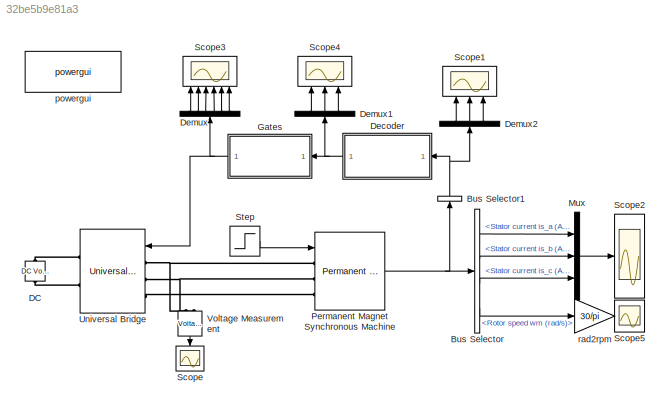
MODEL slx_32be5b9e81a3
KIND model
BLOCK [BusSelector] Bus Selector
  OutputSignals = Stator current is_a (A),Stator current is_b (A),Stator current is_c (A),Rotor speed wm (rad/s)
  Ports = [1, 4]
BLOCK [BusSelector] Bus Selector1
  OutputAsBus = on
  OutputSignals = Hall effect signal h_a,Hall effect signal h_b,Hall effect signal h_c
  Ports = [1, 1]
BLOCK [Reference] DC  REF=powerlib/Electrical
Sources/DC Voltage Source
  Amplitude = 50
  Measurements = None
  Ports = [0, 0, 0, 0, 0, 1, 1]
  SourceBlock = powerlib/Electrical\nSources/DC Voltage Source
  SourceType = DC Voltage Source
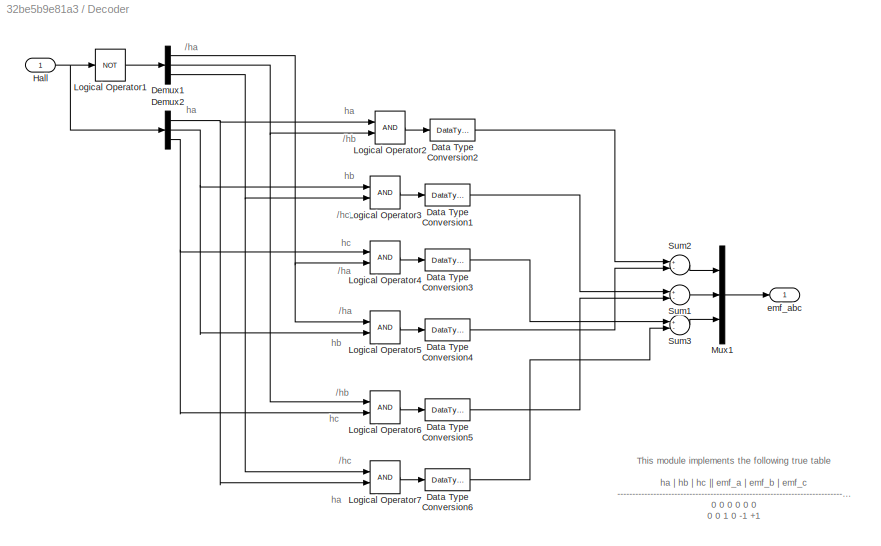
BLOCK [SubSystem] Decoder
  FunctionWithSeparateData = off
  MaskHideContents = off
  MinAlgLoopOccurrences = off
  Opaque = off
  Ports = [1, 1]
  PropExecContextOutsideSubsystem = off
  RTWSystemCode = Auto
  RequestExecContextInheritance = off
BLOCK [DataTypeConversion] Decoder/Data Type Conversion1
  RndMeth = Floor
  SaturateOnIntegerOverflow = off
BLOCK [DataTypeConversion] Decoder/Data Type Conversion2
  RndMeth = Floor
  SaturateOnIntegerOverflow = off
BLOCK [DataTypeConversion] Decoder/Data Type Conversion3
  RndMeth = Floor
  SaturateOnIntegerOverflow = off
BLOCK [DataTypeConversion] Decoder/Data Type Conversion4
  RndMeth = Floor
  SaturateOnIntegerOverflow = off
BLOCK [DataTypeConversion] Decoder/Data Type Conversion5
  RndMeth = Floor
  SaturateOnIntegerOverflow = off
BLOCK [DataTypeConversion] Decoder/Data Type Conversion6
  RndMeth = Floor
  SaturateOnIntegerOverflow = off
BLOCK [Demux] Decoder/Demux1
  DisplayOption = bar
  Outputs = 3
  Ports = [1, 3]
BLOCK [Demux] Decoder/Demux2
  DisplayOption = bar
  Outputs = 3
  Ports = [1, 3]
BLOCK [Inport] Decoder/Hall 
  IconDisplay = Port number
BLOCK [Logic] Decoder/Logical Operator1
  AllPortsSameDT = off
  Operator = NOT
  OutDataTypeStr = boolean
  Ports = [1, 1]
BLOCK [Logic] Decoder/Logical Operator2
  AllPortsSameDT = off
  OutDataTypeStr = boolean
  Ports = [2, 1]
BLOCK [Logic] Decoder/Logical Operator3
  AllPortsSameDT = off
  OutDataTypeStr = boolean
  Ports = [2, 1]
BLOCK [Logic] Decoder/Logical Operator4
  AllPortsSameDT = off
  OutDataTypeStr = boolean
  Ports = [2, 1]
BLOCK [Logic] Decoder/Logical Operator5
  AllPortsSameDT = off
  OutDataTypeStr = boolean
  Ports = [2, 1]
BLOCK [Logic] Decoder/Logical Operator6
  AllPortsSameDT = off
  OutDataTypeStr = boolean
  Ports = [2, 1]
BLOCK [Logic] Decoder/Logical Operator7
  AllPortsSameDT = off
  OutDataTypeStr = boolean
  Ports = [2, 1]
BLOCK [Mux] Decoder/Mux1
  DisplayOption = bar
  Inputs = 3
  Ports = [3, 1]
BLOCK [Sum] Decoder/Sum1
  InputSameDT = off
  Inputs = +-
  OutDataTypeStr = double
  Ports = [2, 1]
  SaturateOnIntegerOverflow = off
BLOCK [Sum] Decoder/Sum2
  InputSameDT = off
  Inputs = +-
  OutDataTypeStr = double
  Ports = [2, 1]
  SaturateOnIntegerOverflow = off
BLOCK [Sum] Decoder/Sum3
  InputSameDT = off
  Inputs = +-
  OutDataTypeStr = double
  Ports = [2, 1]
  SaturateOnIntegerOverflow = off
BLOCK [Outport] Decoder/emf_abc
  IconDisplay = Port number
BLOCK [Demux] Demux
  DisplayOption = bar
  Outputs = 6
  Ports = [1, 6]
BLOCK [Demux] Demux1
  DisplayOption = bar
  Outputs = 3
  Ports = [1, 3]
BLOCK [Demux] Demux2
  DisplayOption = bar
  Outputs = 3
  Ports = [1, 3]
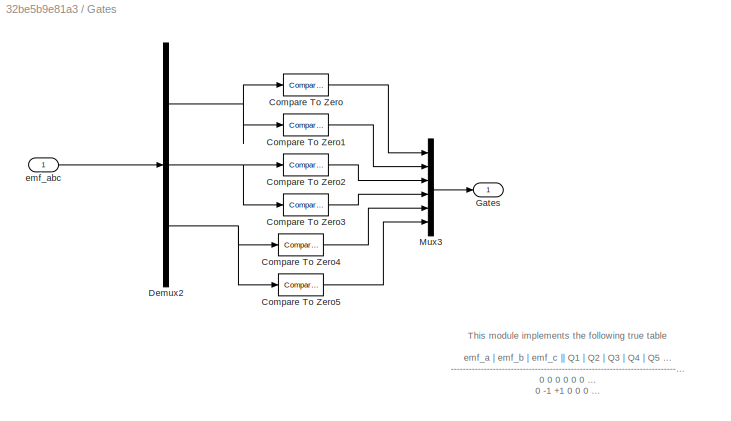
BLOCK [SubSystem] Gates
  FunctionWithSeparateData = off
  MaskHideContents = off
  MinAlgLoopOccurrences = off
  Opaque = off
  Ports = [1, 1]
  PropExecContextOutsideSubsystem = off
  RTWSystemCode = Auto
  RequestExecContextInheritance = off
BLOCK [Reference] Gates/Compare To Zero  REF=simulink/Logic and Bit
Operations/Compare
To Zero
  OutDataTypeStr = boolean
  Ports = [1, 1]
  SourceBlock = simulink/Logic and Bit\nOperations/Compare\nTo Zero
  SourceType = Compare To Zero
  ZeroCross = off
  relop = >
BLOCK [Reference] Gates/Compare To Zero1  REF=simulink/Logic and Bit
Operations/Compare
To Zero
  OutDataTypeStr = boolean
  Ports = [1, 1]
  SourceBlock = simulink/Logic and Bit\nOperations/Compare\nTo Zero
  SourceType = Compare To Zero
  ZeroCross = off
  relop = <
BLOCK [Reference] Gates/Compare To Zero2  REF=simulink/Logic and Bit
Operations/Compare
To Zero
  OutDataTypeStr = boolean
  Ports = [1, 1]
  SourceBlock = simulink/Logic and Bit\nOperations/Compare\nTo Zero
  SourceType = Compare To Zero
  ZeroCross = off
  relop = >
BLOCK [Reference] Gates/Compare To Zero3  REF=simulink/Logic and Bit
Operations/Compare
To Zero
  OutDataTypeStr = boolean
  Ports = [1, 1]
  SourceBlock = simulink/Logic and Bit\nOperations/Compare\nTo Zero
  SourceType = Compare To Zero
  ZeroCross = off
  relop = <
BLOCK [Reference] Gates/Compare To Zero4  REF=simulink/Logic and Bit
Operations/Compare
To Zero
  OutDataTypeStr = boolean
  Ports = [1, 1]
  SourceBlock = simulink/Logic and Bit\nOperations/Compare\nTo Zero
  SourceType = Compare To Zero
  ZeroCross = off
  relop = >
BLOCK [Reference] Gates/Compare To Zero5  REF=simulink/Logic and Bit
Operations/Compare
To Zero
  OutDataTypeStr = boolean
  Ports = [1, 1]
  SourceBlock = simulink/Logic and Bit\nOperations/Compare\nTo Zero
  SourceType = Compare To Zero
  ZeroCross = off
  relop = <
BLOCK [Demux] Gates/Demux2
  DisplayOption = bar
  Outputs = 3
  Ports = [1, 3]
BLOCK [Outport] Gates/Gates
  IconDisplay = Port number
BLOCK [Mux] Gates/Mux3
  DisplayOption = bar
  Inputs = 6
  Ports = [6, 1]
BLOCK [Inport] Gates/emf_abc 
  IconDisplay = Port number
BLOCK [Mux] Mux
  DisplayOption = bar
  Inputs = 3
  Ports = [3, 1]
BLOCK [Reference] Permanent Magnet Synchronous Machine  REF=powerlib/Machines/Permanent Magnet
Synchronous Machine
  Flat = 120
  Flux = 0.175
  FluxDistribution = Trapezoidal
  Inductance = 8.5e-3
  InitialConditions = [0,0, 0,0]
  InitialConditions5ph = [0 0 0 0 0 0]
  La = 0.000835
  MachineConstant = Flux linkage established by magnets (V.s)
  Mechanical = [ 0.8e-3, 1e-3 4]
  MechanicalLoad = Torque Tm
  NbPhases = 3
  PolePairs = 4
  Ports = [1, 1, 0, 0, 0, 3]
  PresetModel = No
  RefAngle = Aligned with phase A axis (original Park)
  Resistance = 2.8750
  RotorType = Round
  ShowDetailedParameters = on
  SourceBlock = powerlib/Machines/Permanent Magnet\nSynchronous Machine
  SourceType = Permanent Magnet Synchronous Machine
  TorqueCst = 1.4
  TsBlock = -1
  TsPowergui = 0
  VoltageCst = 146.6077
  dqInductances = [8.5e-3,8.5e-3]
BLOCK [Scope] Scope
  DataFormat = StructureWithTime
  Floating = off
  LimitDataPoints = off
  NumInputPorts = 1
  Ports = [1]
  SampleTime = 0
  SaveName = ScopeData2
  ShowLegends = off
  YMax = 500
  YMin = -500
BLOCK [Scope] Scope1
  DataFormat = StructureWithTime
  Floating = off
  NumInputPorts = 3
  Ports = [3]
  SampleTime = 0
  SaveName = ScopeData3
  ShowLegends = off
  YMax = 1.5~1.5~1.5
  YMin = -1.5~-1.5~-1.5
BLOCK [Scope] Scope2
  DataFormat = StructureWithTime
  Floating = off
  LimitDataPoints = off
  NumInputPorts = 1
  Ports = [1]
  SampleTime = 0
  ShowLegends = off
  YMax = 4
  YMin = -4
  ZoomMode = xonly
BLOCK [Scope] Scope3
  DataFormat = StructureWithTime
  Floating = off
  LimitDataPoints = off
  NumInputPorts = 6
  Ports = [6]
  SampleTime = 0
  SaveName = ScopeData1
  ShowLegends = off
  YMax = 1.5~1.5~1.5~1.5~1.5~1.5
  YMin = -0.5~-0.5~-0.5~-0.5~-0.5~-0.5
  ZoomMode = xonly
BLOCK [Scope] Scope4
  DataFormat = StructureWithTime
  Floating = off
  NumInputPorts = 3
  Ports = [3]
  SampleTime = 0
  SaveName = ScopeData4
  ShowLegends = off
  YMax = 1.5~1.5~1.5
  YMin = -1.5~-1.5~-1.5
BLOCK [Scope] Scope5
  DataFormat = StructureWithTime
  Floating = off
  LimitDataPoints = off
  NumInputPorts = 1
  Ports = [1]
  SampleTime = 0
  SaveName = ScopeData5
  ShowLegends = off
  YMax = 400
  YMin = 0
BLOCK [Step] Step
  After = 0
  SampleTime = 0
  Time = .1
BLOCK [Reference] Universal Bridge  REF=powerlib/Power
Electronics/Universal Bridge
  Arms = 3
  Device = MOSFET / Diodes
  ForwardVoltage = 0
  ForwardVoltages = [  0  0  ]
  GTOparameters = [ 10e-6 , 20e-6 ]
  IGBTparameters = [ 1e-6 , 2e-6 ]
  Lon = 0
  Measurements = None
  Measurements_2 = None
  Ports = [1, 0, 0, 0, 0, 3, 2]
  Ron = 1e-3
  SnubberCapacitance = 1e-6
  SnubberResistance = 5000
  SourceBlock = powerlib/Power\nElectronics/Universal Bridge
  SourceType = Universal Bridge
  converterType = Rectifier
BLOCK [Reference] Voltage Measurement  REF=powerlib/Measurements/Voltage Measurement
  OutputType = Complex
  PSBequivalent = 0
  PhasorSimulation = off
  Ports = [0, 1, 0, 0, 0, 2]
  SourceBlock = powerlib/Measurements/Voltage Measurement
  SourceType = Voltage Measurement
BLOCK [Reference] powergui  REF=powerlib/powergui
  DisableRonSwitches = off
  DisableSnubberDevices = off
  DisableVfSwitches = off
  DisplayEquations = off
  DisplayStyle = 1
  EnableUseOfTLC = off
  ErrMax = 1e-4
  Frange = [0:2:500]
  FreqAxis = off
  FunctionMessages = off
  HookPort = off
  Interpol = off
  Iterations = 50
  MaxFrequency = 1000
  Pbase = 100e6
  Ports = []
  Priority = 2
  ResistiveCurrentMeasurement = off
  RestoreLinks = warning
  RmsSteady = 1
  SPID = off
  SampleTime = 5e-5
  ShowGrid = off
  SolverType = Tustin
  SourceBlock = powerlib/powergui
  SourceType = PSB option menu block
  StartTime = 0.0
  SwTol = 0
  Ts = 0
  UnitsV = kV
  UnitsW = MW
  UserDataPersistent = on
  Xlog = on
  Ylog = off
  ZoomFFT = on
  cycles = 1
  display = off
  echomessages = off
  frequency = 60
  frequencyindice = 0
  frequencyindicesteady = 1
  fundamental = 60
  methode = off
  save = off
  variable = ZData
  x0status = blocks
BLOCK [Gain] rad2rpm
  Gain = 30/pi
  OutDataTypeStr = Inherit: Inherit via internal rule
  ParamDataTypeStr = Inherit: Inherit via internal rule
  SaturateOnIntegerOverflow = off
ANNOTATION Decoder: /ha
ANNOTATION Decoder: /hb
ANNOTATION Decoder: /hc
ANNOTATION Decoder: This module implements the following true table ha | hb | hc || emf_a | emf_b | emf_c -------------------------------------------------------------------------------- 0 0 0 0 0 0 0 0 1 0 -1 +1 0 1 0 -1 +1 0 0 1 1 -1 0 +1 1 0 0 +1 0 -1 1 0 1 +1 -1 0 1 1 0 0 +1 -1 1 1 1 0 0 0
ANNOTATION Decoder: ha
ANNOTATION Decoder: hb
ANNOTATION Decoder: hc
ANNOTATION Gates: This module implements the following true table emf_a | emf_b | emf_c || Q1 | Q2 | Q3 | Q4 | Q5 | Q6 ------------------------------------------------------------------------------------------------------------------ 0 0 0 0 0 0 0 0 0 0 -1 +1 0 0 0 1 1 0 -1 +1 0 0 1 1 0 0 0 -1 0 +1 0 1 0 0 1 0 +1 0 -1 1 0 0 0 0 1 +1 -1 0 1 0 0 1 0 0 0 +1 -1 0 0 1 0 0 1 0 0 0 0 0 0 0 0 0
NET Bus Selector1:1 -> Decoder:1, Demux2:1
LINE Bus Selector:1 -> Mux:1
LINE Bus Selector:2 -> Mux:2
LINE Bus Selector:3 -> Mux:3
LINE Bus Selector:4 -> rad2rpm:1
LINE Decoder/Data Type Conversion1:1 -> Decoder/Sum1:1
LINE Decoder/Data Type Conversion2:1 -> Decoder/Sum2:1
LINE Decoder/Data Type Conversion3:1 -> Decoder/Sum3:1
LINE Decoder/Data Type Conversion4:1 -> Decoder/Sum2:2
LINE Decoder/Data Type Conversion5:1 -> Decoder/Sum1:2
LINE Decoder/Data Type Conversion6:1 -> Decoder/Sum3:2
NET Decoder/Demux1:1 -> Decoder/Logical Operator4:2, Decoder/Logical Operator5:1
NET Decoder/Demux1:2 -> Decoder/Logical Operator2:2, Decoder/Logical Operator6:1
NET Decoder/Demux1:3 -> Decoder/Logical Operator3:2, Decoder/Logical Operator7:1
NET Decoder/Demux2:1 -> Decoder/Logical Operator2:1, Decoder/Logical Operator7:2
NET Decoder/Demux2:2 -> Decoder/Logical Operator3:1, Decoder/Logical Operator5:2
NET Decoder/Demux2:3 -> Decoder/Logical Operator4:1, Decoder/Logical Operator6:2
NET Decoder/Hall :1 -> Decoder/Demux2:1, Decoder/Logical Operator1:1
LINE Decoder/Logical Operator1:1 -> Decoder/Demux1:1
LINE Decoder/Logical Operator2:1 -> Decoder/Data Type Conversion2:1
LINE Decoder/Logical Operator3:1 -> Decoder/Data Type Conversion1:1
LINE Decoder/Logical Operator4:1 -> Decoder/Data Type Conversion3:1
LINE Decoder/Logical Operator5:1 -> Decoder/Data Type Conversion4:1
LINE Decoder/Logical Operator6:1 -> Decoder/Data Type Conversion5:1
LINE Decoder/Logical Operator7:1 -> Decoder/Data Type Conversion6:1
LINE Decoder/Mux1:1 -> Decoder/emf_abc:1
LINE Decoder/Sum1:1 -> Decoder/Mux1:2
LINE Decoder/Sum2:1 -> Decoder/Mux1:1
LINE Decoder/Sum3:1 -> Decoder/Mux1:3
NET Decoder:1 -> Demux1:1, Gates:1
LINE Demux1:1 -> Scope4:1
LINE Demux1:2 -> Scope4:2
LINE Demux1:3 -> Scope4:3
LINE Demux2:1 -> Scope1:1
LINE Demux2:2 -> Scope1:2
LINE Demux2:3 -> Scope1:3
LINE Demux:1 -> Scope3:1
LINE Demux:2 -> Scope3:2
LINE Demux:3 -> Scope3:3
LINE Demux:4 -> Scope3:4
LINE Demux:5 -> Scope3:5
LINE Demux:6 -> Scope3:6
LINE Gates/Compare To Zero1:1 -> Gates/Mux3:2
LINE Gates/Compare To Zero2:1 -> Gates/Mux3:3
LINE Gates/Compare To Zero3:1 -> Gates/Mux3:4
LINE Gates/Compare To Zero4:1 -> Gates/Mux3:5
LINE Gates/Compare To Zero5:1 -> Gates/Mux3:6
LINE Gates/Compare To Zero:1 -> Gates/Mux3:1
NET Gates/Demux2:1 -> Gates/Compare To Zero1:1, Gates/Compare To Zero:1
NET Gates/Demux2:2 -> Gates/Compare To Zero2:1, Gates/Compare To Zero3:1
NET Gates/Demux2:3 -> Gates/Compare To Zero4:1, Gates/Compare To Zero5:1
LINE Gates/Mux3:1 -> Gates/Gates:1
LINE Gates/emf_abc :1 -> Gates/Demux2:1
NET Gates:1 -> Demux:1, Universal Bridge:1
LINE Mux:1 -> Scope2:1
NET Permanent Magnet Synchronous Machine:1 -> Bus Selector1:1, Bus Selector:1
LINE Step:1 -> Permanent Magnet Synchronous Machine:1
LINE Voltage Measurement:1 -> Scope:1
LINE rad2rpm:1 -> Scope5:1
PLINE DC:LConn1 -- Universal Bridge:RConn2
PLINE DC:RConn1 -- Universal Bridge:RConn1
PNET net1: Permanent Magnet Synchronous Machine:LConn1 -- Universal Bridge:LConn1 -- Voltage Measurement:LConn1
PNET net2: Permanent Magnet Synchronous Machine:LConn2 -- Universal Bridge:LConn2 -- Voltage Measurement:LConn2
PLINE Permanent Magnet Synchronous Machine:LConn3 -- Universal Bridge:LConn3
note: NET lines group one-source signal fan-out (src -> all destinations, sorted); 1:1 wires keep LINE; PNET lines group multi-terminal physical nets as a canonical sorted terminal list (undirected conserving connections); 2-terminal nets keep the pairwise PLINE form
